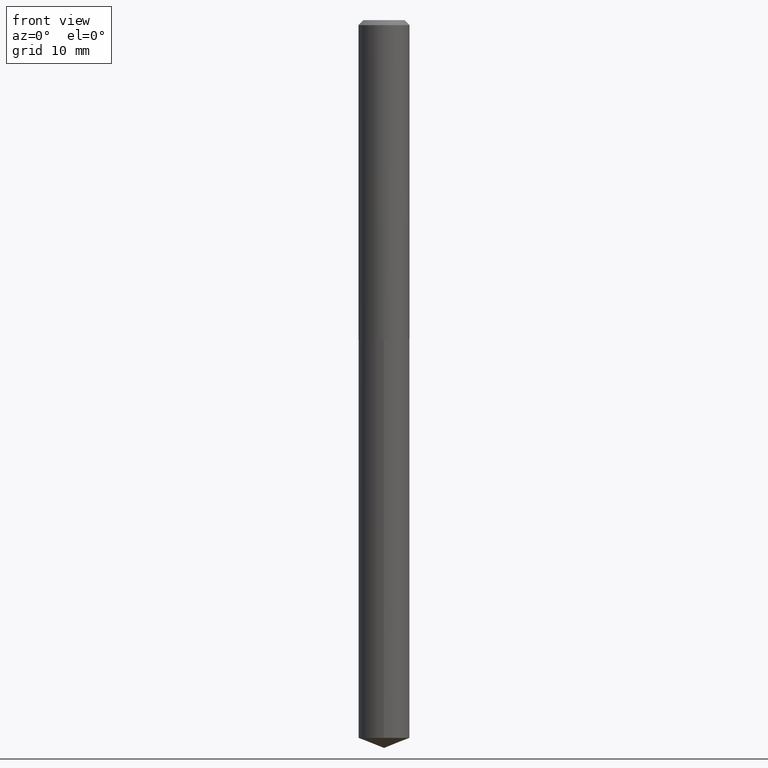
[diagram: clean part render]
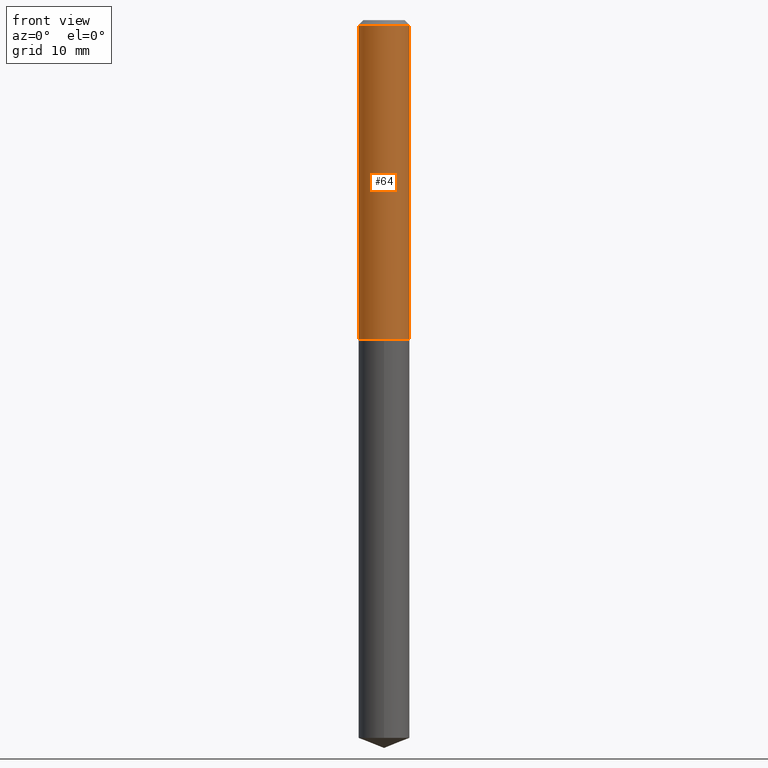
[diagram: same view with one face highlighted and labeled with its STEP entity id]
A machine part, front view. The second image highlights one B-rep face of the part: STEP entity #64.
In plain terms, the highlighted cylindrical surface (edge-blend (fillet) strip) has radius 4.0005 mm, axis along (-0, 0, 1).
Its self-contained STEP definition (entity closure, byte-faithful):
#23 = CARTESIAN_POINT ( 'NONE',  ( -0.1575000000000002232, -5.752130466021147867E-15, -1.967999999999999305 ) ) ;
#26 = CIRCLE ( 'NONE', #329, 0.1575000000000002232 ) ;
#32 = EDGE_CURVE ( 'NONE', #288, #59, #355, .T. ) ;
#50 = CARTESIAN_POINT ( 'NONE',  ( -0.1575000000000000011, -2.371067224518919682E-15, -0.03125000000000022898 ) ) ;
#54 = EDGE_CURVE ( 'NONE', #202, #341, #26, .T. ) ;
#59 = VERTEX_POINT ( 'NONE', #291 ) ;
#64 = ADVANCED_FACE ( 'NONE', ( #140 ), #388, .T. ) ;
#65 = DIRECTION ( 'NONE',  ( 1.000000000000000000, -6.982962677686271444E-15, 0.000000000000000000 ) ) ;
#67 = DIRECTION ( 'NONE',  ( -2.445468806185136597E-29, 3.491481338843145583E-15, 1.000000000000000000 ) ) ;
#81 = AXIS2_PLACEMENT_3D ( 'NONE', #211, #145, #361 ) ;
#92 = AXIS2_PLACEMENT_3D ( 'NONE', #234, #243, #177 ) ;
#100 = CARTESIAN_POINT ( 'NONE',  ( 0.1575000000000000844, -1.099816621735587677E-15, 7.679978421878603638E-30 ) ) ;
#115 = CARTESIAN_POINT ( 'NONE',  ( 4.812682610572347352E-29, -6.871235274843307837E-15, -1.967999999999999305 ) ) ;
#128 = ORIENTED_EDGE ( 'NONE', *, *, #54, .T. ) ;
#134 = ORIENTED_EDGE ( 'NONE', *, *, #255, .T. ) ;
#140 = FACE_OUTER_BOUND ( 'NONE', #320, .T. ) ;
#145 = DIRECTION ( 'NONE',  ( -2.445468806185136597E-29, 3.491481338843145583E-15, 1.000000000000000000 ) ) ;
#146 = VECTOR ( 'NONE', #354, 39.37007874015748143 ) ;
#150 = EDGE_CURVE ( 'NONE', #202, #288, #241, .T. ) ;
#171 = LINE ( 'NONE', #100, #357 ) ;
#177 = DIRECTION ( 'NONE',  ( 1.000000000000000000, -6.982962677686265922E-15, 0.000000000000000000 ) ) ;
#202 = VERTEX_POINT ( 'NONE', #23 ) ;
#203 = ORIENTED_EDGE ( 'NONE', *, *, #150, .F. ) ;
#211 = CARTESIAN_POINT ( 'NONE',  ( 0.000000000000000000, 0.000000000000000000, 0.000000000000000000 ) ) ;
#219 = DIRECTION ( 'NONE',  ( -2.445468806185136877E-29, 3.491481338843145188E-15, 1.000000000000000000 ) ) ;
#220 = ORIENTED_EDGE ( 'NONE', *, *, #32, .F. ) ;
#234 = CARTESIAN_POINT ( 'NONE',  ( 7.642090019328607917E-31, -1.091087918388491006E-16, -0.03125000000000022898 ) ) ;
#241 = LINE ( 'NONE', #359, #146 ) ;
#243 = DIRECTION ( 'NONE',  ( -2.445468806185136597E-29, 3.491481338843145583E-15, 1.000000000000000000 ) ) ;
#255 = EDGE_CURVE ( 'NONE', #341, #59, #171, .T. ) ;
#288 = VERTEX_POINT ( 'NONE', #50 ) ;
#291 = CARTESIAN_POINT ( 'NONE',  ( 0.1575000000000000011, -1.208925413574435989E-15, -0.03125000000000022898 ) ) ;
#320 = EDGE_LOOP ( 'NONE', ( #203, #128, #134, #220 ) ) ;
#329 = AXIS2_PLACEMENT_3D ( 'NONE', #115, #67, #65 ) ;
#341 = VERTEX_POINT ( 'NONE', #368 ) ;
#354 = DIRECTION ( 'NONE',  ( -2.445468806185136877E-29, 3.491481338843145188E-15, 1.000000000000000000 ) ) ;
#355 = CIRCLE ( 'NONE', #92, 0.1575000000000000011 ) ;
#357 = VECTOR ( 'NONE', #219, 39.37007874015748143 ) ;
#359 = CARTESIAN_POINT ( 'NONE',  ( -0.1575000000000000844, 1.119104808822158392E-15, -7.747322767151481189E-30 ) ) ;
#361 = DIRECTION ( 'NONE',  ( 1.000000000000000000, -6.982962677686267499E-15, 4.876176775795936353E-29 ) ) ;
#368 = CARTESIAN_POINT ( 'NONE',  ( 0.1575000000000002232, -7.971051896578897684E-15, -1.967999999999999305 ) ) ;
#388 = CYLINDRICAL_SURFACE ( 'NONE', #81, 0.1575000000000000844 ) ;